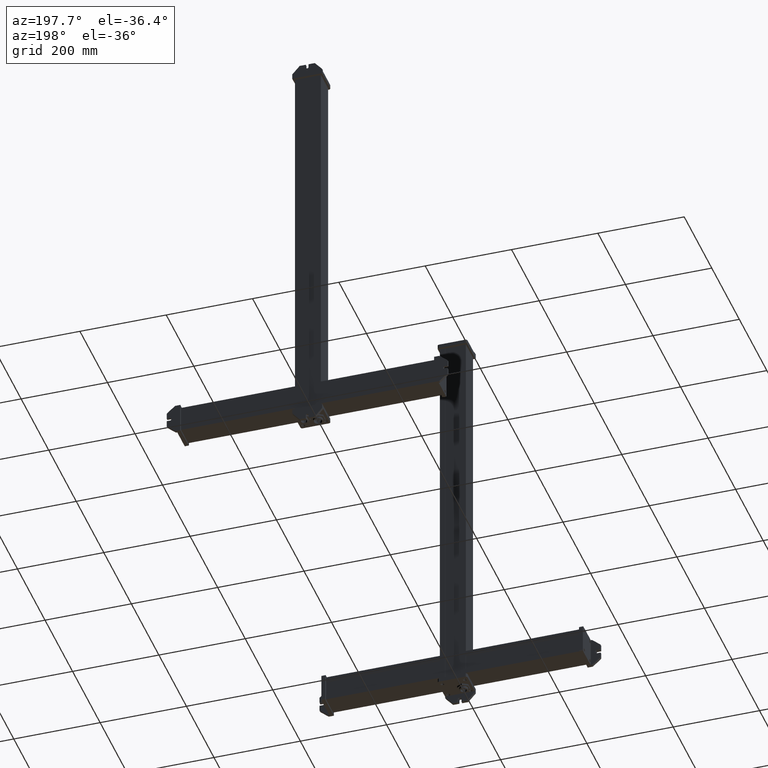
[diagram: clean part render]
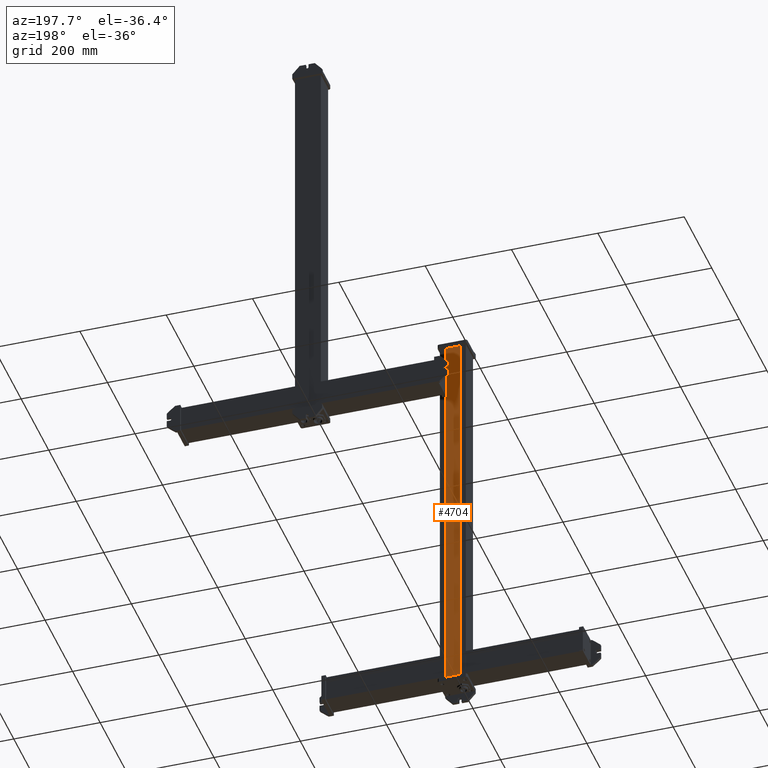
[diagram: same view with one face highlighted and labeled with its STEP entity id]
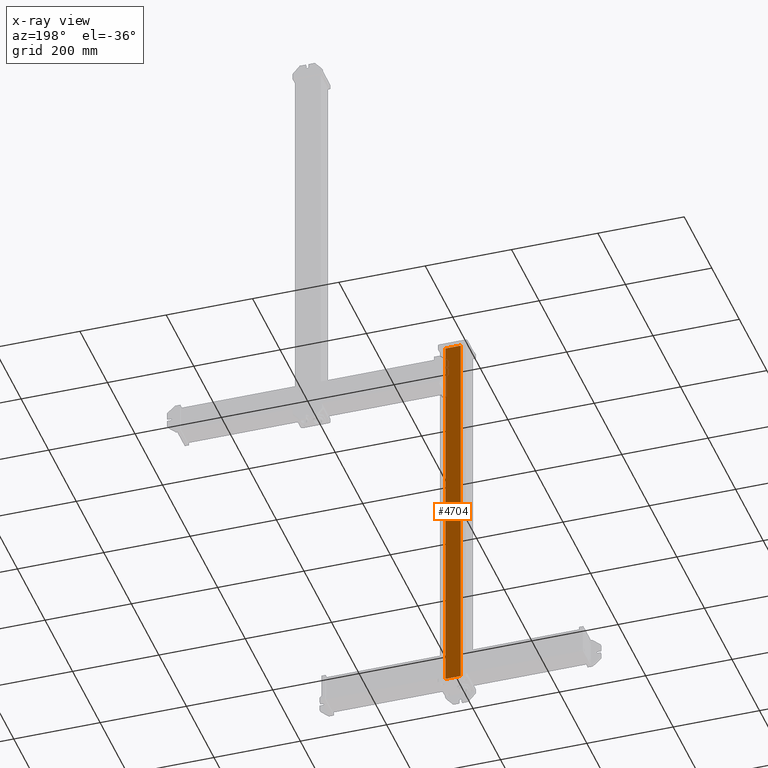
[diagram: x-ray of the same camera — body ghosted, the highlighted face saturated]
A machine part, auxiliary view. The second image highlights one B-rep face of the part: STEP entity #4704.
The next image is the same camera in x-ray: the body ghosted, the highlighted face saturated — about 1% of this face is hidden behind the body in this view.
In plain terms, the highlighted planar face has unit normal (0, 1, 0).
Its self-contained STEP definition (entity closure, byte-faithful):
#4621=CARTESIAN_POINT('Vertex',(12.,51.,0.)) ;
#4624=CARTESIAN_POINT('Line Origine',(30.,51.,0.)) ;
#4628=CARTESIAN_POINT('Vertex',(48.,51.,0.)) ;
#4661=CARTESIAN_POINT('Vertex',(12.,51.,906.)) ;
#4664=CARTESIAN_POINT('Line Origine',(12.,51.,453.)) ;
#4681=CARTESIAN_POINT('Axis2P3D Location',(48.,51.,0.)) ;
#4686=CARTESIAN_POINT('Line Origine',(48.,51.,453.)) ;
#4690=CARTESIAN_POINT('Vertex',(48.,51.,906.)) ;
#4693=CARTESIAN_POINT('Line Origine',(30.,51.,906.)) ;
#4625=DIRECTION('Vector Direction',(-1.,0.,0.)) ;
#4665=DIRECTION('Vector Direction',(0.,0.,1.)) ;
#4682=DIRECTION('Axis2P3D Direction',(0.,1.,-0.)) ;
#4683=DIRECTION('Axis2P3D XDirection',(-1.,0.,0.)) ;
#4687=DIRECTION('Vector Direction',(0.,0.,1.)) ;
#4694=DIRECTION('Vector Direction',(-1.,0.,0.)) ;
#4684=AXIS2_PLACEMENT_3D('Plane Axis2P3D',#4681,#4682,#4683) ;
#4699=ORIENTED_EDGE('',*,*,#4692,.F.) ;
#4700=ORIENTED_EDGE('',*,*,#4630,.F.) ;
#4701=ORIENTED_EDGE('',*,*,#4668,.T.) ;
#4702=ORIENTED_EDGE('',*,*,#4697,.F.) ;
#4626=VECTOR('Line Direction',#4625,1.) ;
#4666=VECTOR('Line Direction',#4665,1.) ;
#4688=VECTOR('Line Direction',#4687,1.) ;
#4695=VECTOR('Line Direction',#4694,1.) ;
#4704=ADVANCED_FACE('Body.2',(#4703),#4685,.T.) ;
#4630=EDGE_CURVE('',#4622,#4629,#4627,.F.) ;
#4668=EDGE_CURVE('',#4622,#4662,#4667,.T.) ;
#4692=EDGE_CURVE('',#4629,#4691,#4689,.T.) ;
#4697=EDGE_CURVE('',#4691,#4662,#4696,.T.) ;
#4698=EDGE_LOOP('',(#4699,#4700,#4701,#4702)) ;
#4703=FACE_OUTER_BOUND('',#4698,.T.) ;
#4627=LINE('Line',#4624,#4626) ;
#4667=LINE('Line',#4664,#4666) ;
#4689=LINE('Line',#4686,#4688) ;
#4696=LINE('Line',#4693,#4695) ;
#4685=PLANE('Plane',#4684) ;
#4622=VERTEX_POINT('',#4621) ;
#4629=VERTEX_POINT('',#4628) ;
#4662=VERTEX_POINT('',#4661) ;
#4691=VERTEX_POINT('',#4690) ;